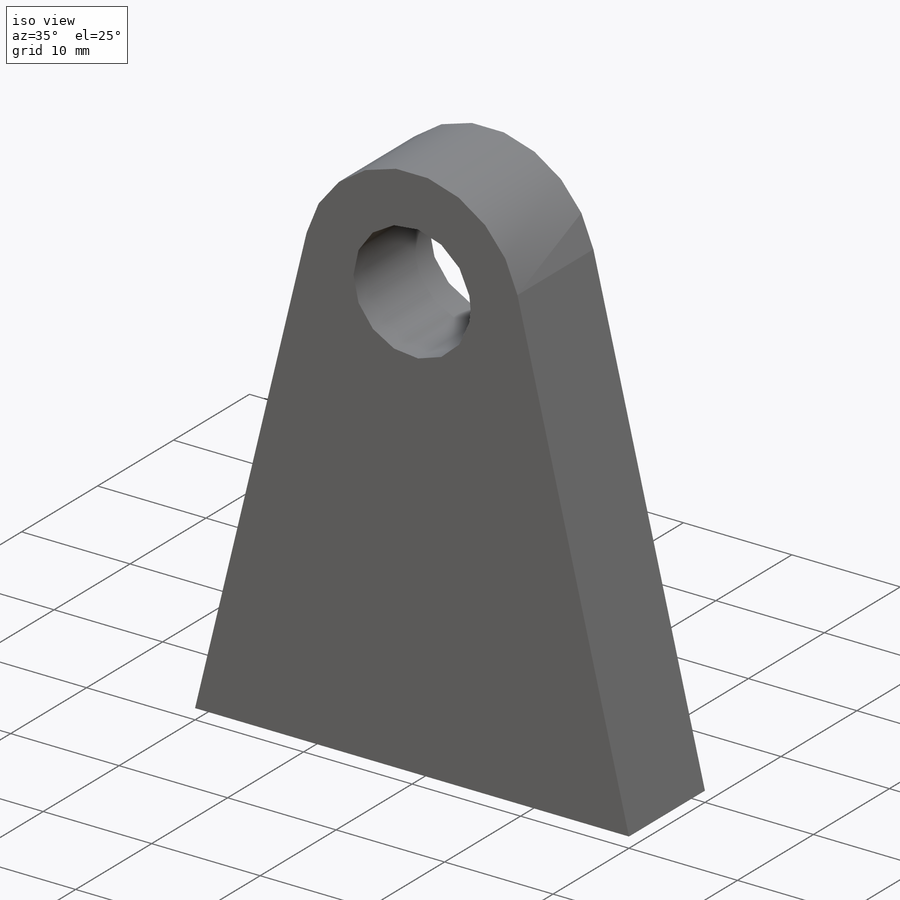
[diagram: iso view]
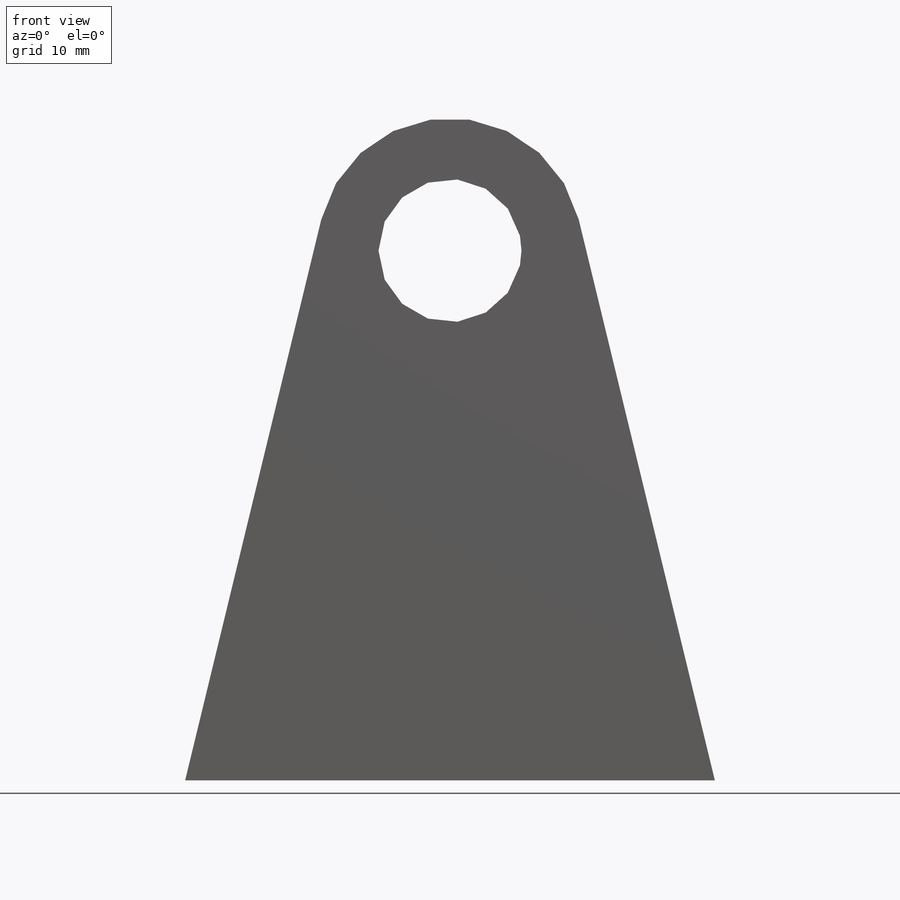
[diagram: front view]
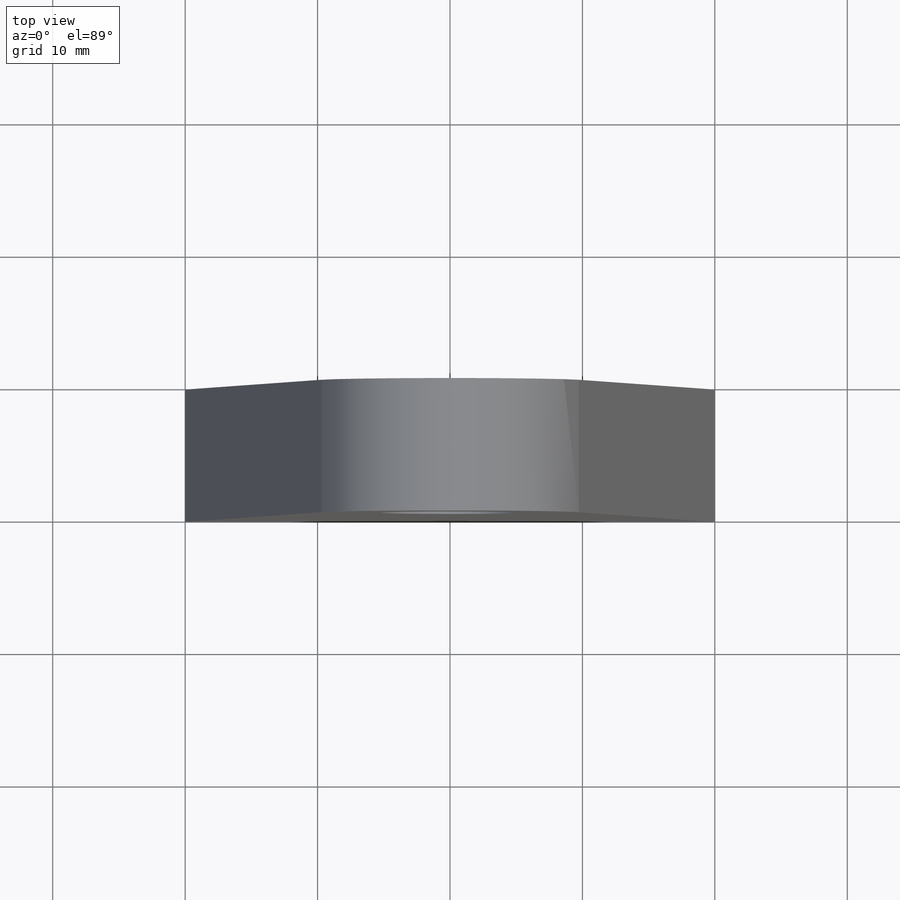
[diagram: top view]
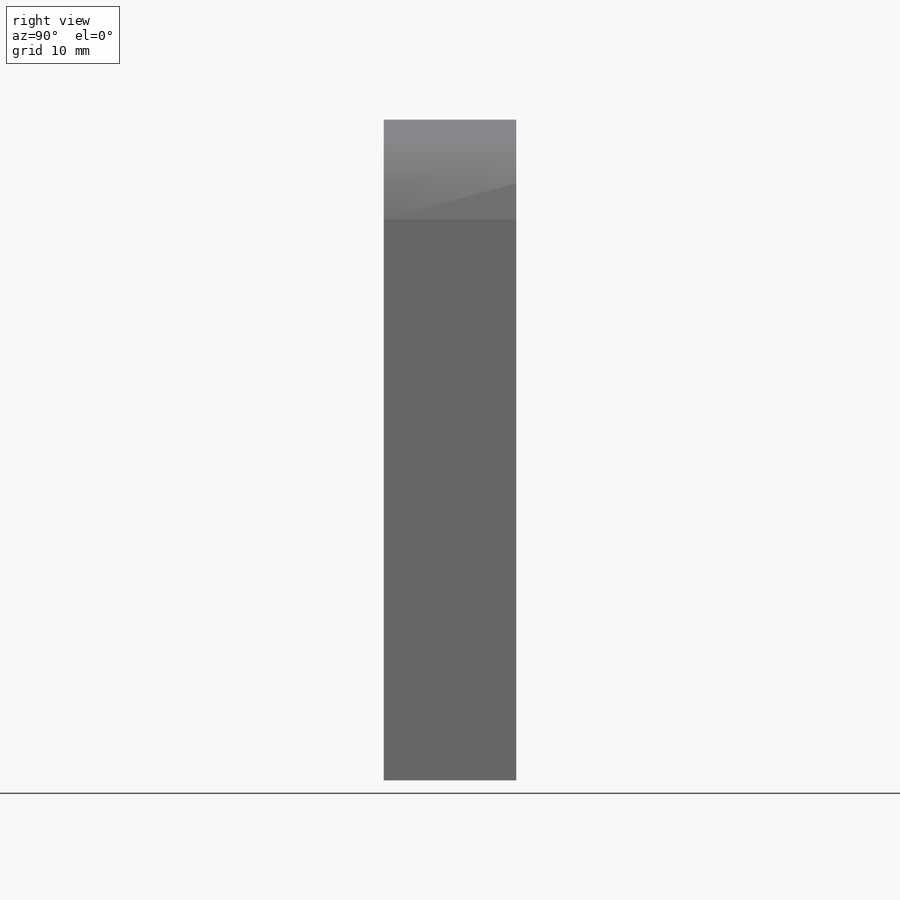
[diagram: right view]
SOLIDWORKS PART (.sldprt)
format: sldprt  version: not decoded by parser v0  size: 360,448 bytes
history: native  units: mm
features: sketch x5, extrude x4, fillet x2, material x1, pattern_linear x1, cut_extrude x1, shell x1 (+13 scaffold rows collapsed)
feature tree (28):
  scaffold x13  (default folders/planes/origin — collapsed)
  material  "Material <not specified>"
  sketch  "Sketch1"  dims[D3=20.0mm D1=40.0mm D2=40.0mm]
  extrude  "Boss-Extrude1"  Depth=2mm
  sketch  "Sketch2"  dims[D1=2.0mm]
  extrude  "Boss-Extrude2"  [1 undecoded]
  pattern_linear  "LPattern1"  Count1=2 Count2=1 Spacing1=12mm Spacing2=50mm
  fillet  "Fillet1"  Radius=1.5mm
  sketch  "Sketch3"
  extrude  "Boss-Extrude3"  Depth=11mm
  sketch  "Sketch5"
  cut_extrude  "Cut-Extrude1"  [1 undecoded]
  shell  "Shell1"  Thickness=10mm
  fillet  "Fillet2"  Radius=1.5mm
  sketch  "Sketch6"  dims[D1=1.5mm D2=14.0]
  extrude  "Boss-Extrude4"  Depth=2mm
decode coverage: 10 of 14 modeling features carry decoded parameters
note: 2 parameter values undecoded
note: suppression state not decoded; provenance and decode notes live in map.json
